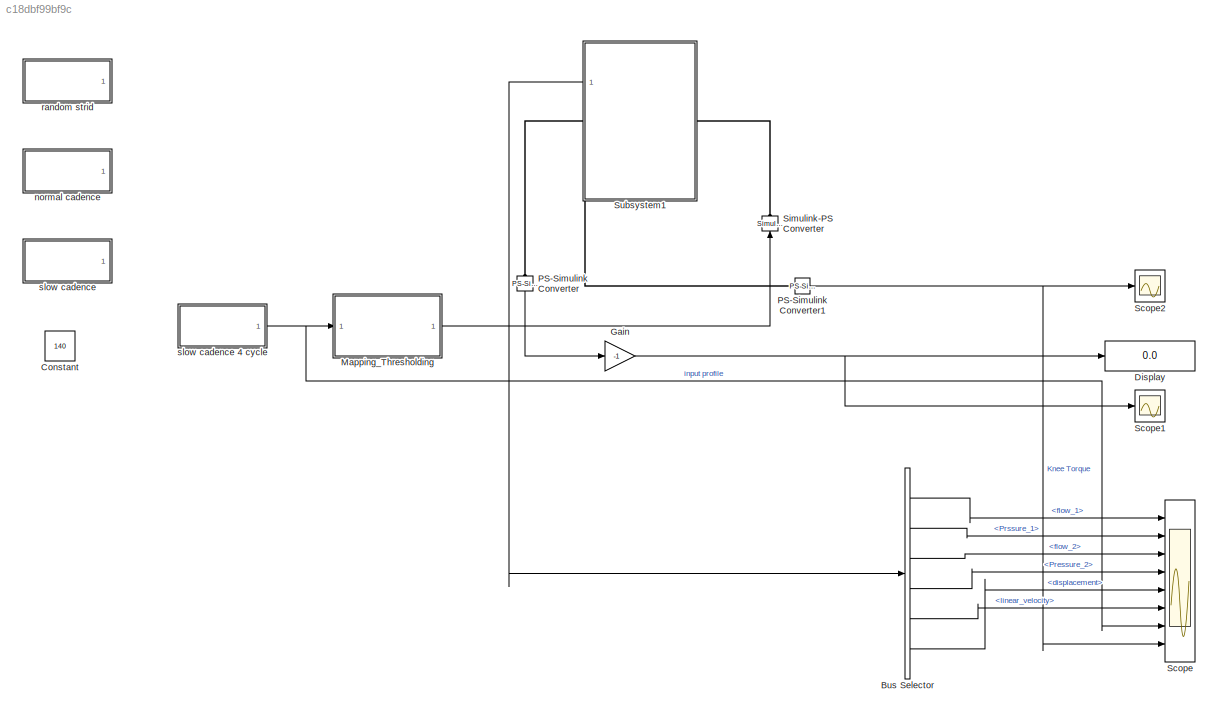
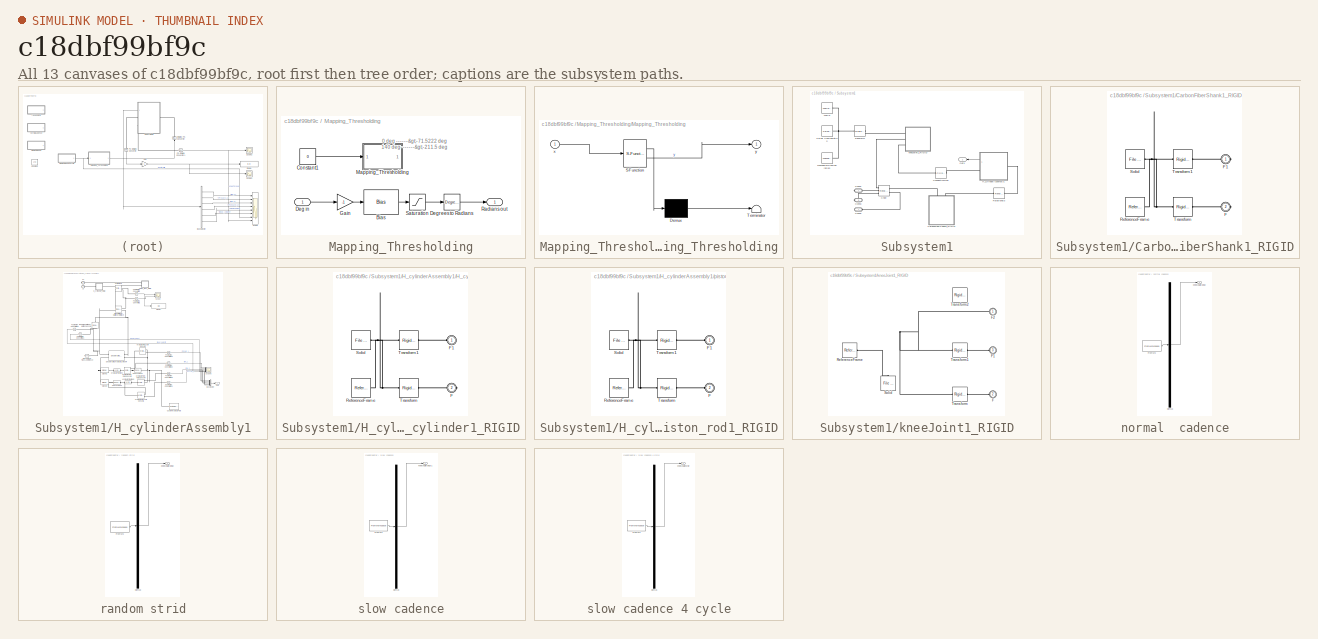
[diagram: thumbnail index - all 13 canvases of the model, root first then tree order]
MODEL slx_c18dbf99bf9c
KIND model
CONFIG AbsTol = auto
CONFIG EnableMultiTasking = off
CONFIG FixedStep = auto
CONFIG MaxStep = auto
CONFIG MinStep = auto
CONFIG RelTol = 1e-3
CONFIG SampleTimeConstraint = Unconstrained
CONFIG SolverName = VariableStepAuto
CONFIG StartTime = 0.0
CONFIG StopTime = 4.872
WORKSPACE source: external: MATLAB File  (data not in archive)
BLOCK [BusSelector] Bus Selector
  OutputSignals = flow_1,Prssure_1,flow_2,Pressure_2,linear_velocity,displacement
  Ports = [1, 6]
BLOCK [Constant] Constant
  Value = 140
BLOCK [Display] Display
  Decimation = 1
  Ports = [1]
BLOCK [Gain] Gain
  Gain = -1
BLOCK [SubSystem] Mapping_Thresholding
  Ports = [1, 1]
  RequestExecContextInheritance = off
BLOCK [Bias] Mapping_Thresholding/Bias
  Bias = -71.5222
  SaturateOnIntegerOverflow = off
BLOCK [Constant] Mapping_Thresholding/Constant1
  Commented = on
  Value = 0
BLOCK [Inport] Mapping_Thresholding/Deg in
BLOCK [Reference] Mapping_Thresholding/Degrees to Radians  REF=simulink_extras/Transformations/Degrees to
Radians
  Ports = [1, 1]
  SourceBlock = simulink_extras/Transformations/Degrees to\nRadians
  SourceProductBaseCode = SL
  SourceType = DegreesToRadians
BLOCK [Gain] Mapping_Thresholding/Gain
  Gain = -1
BLOCK [SubSystem] Mapping_Thresholding/Mapping_Thresholding
  Commented = on
  ErrorFcn = Stateflow.Translate.translate
  PermitHierarchicalResolution = ExplicitOnly
  Ports = [1, 1]
  RequestExecContextInheritance = off
  SFBlockType = MATLAB Function
  TreatAsAtomicUnit = on
BLOCK [Demux] Mapping_Thresholding/Mapping_Thresholding/ Demux 
  Outputs = 1
  Ports = [1, 1]
BLOCK [S-Function] Mapping_Thresholding/Mapping_Thresholding/ SFunction 
  EnableBusSupport = on
  FunctionName = sf_sfun
  PortCounts = [1 2]
  Ports = [1, 2]
  SFcnIsStateOwnerBlock = off
  SFunctionDeploymentMode = off
  Tag = Stateflow S-Function 2
BLOCK [Terminator] Mapping_Thresholding/Mapping_Thresholding/ Terminator 
BLOCK [Inport] Mapping_Thresholding/Mapping_Thresholding/x
BLOCK [Outport] Mapping_Thresholding/Mapping_Thresholding/y
BLOCK [Outport] Mapping_Thresholding/Radians out
BLOCK [Saturate] Mapping_Thresholding/Saturation
  LowerLimit = -211.5
  UpperLimit = -71.5222
BLOCK [Reference] PS-Simulink Converter  REF=nesl_utility/PS-Simulink
Converter
  NameLocation = left
  Ports = [0, 1, 0, 0, 0, 1]
  SourceBlock = nesl_utility/PS-Simulink\nConverter
  SourceProductBaseCode = PW,SS
  SourceType = PS-Simulink\nConverter
BLOCK [Reference] PS-Simulink Converter1  REF=nesl_utility/PS-Simulink
Converter
  Ports = [0, 1, 0, 0, 0, 1]
  SourceBlock = nesl_utility/PS-Simulink\nConverter
  SourceProductBaseCode = PW,SS
  SourceType = PS-Simulink\nConverter
BLOCK [Scope] Scope
  Floating = off
  NumInputPorts = 8
  Ports = [8]
  ScopeSpecificationString = Simulink.scopes.TimeScopeBlockCfg('CurrentConfiguration', extmgr.ConfigurationSet(extmgr.Configuration('Core','General UI',true,'DisplayFullSourceName',true),extmgr.Configuration('Core','Source UI',true),extmgr.Configuration('Sources','WiredSimulink',true),extmgr.Configuration('Visuals','Time Domain',true,'SerializedDisplays',{struct('MinYLimReal','-0.0000004','MaxYLimReal','0.0000032','YLabelReal...<+6449ch>
BLOCK [Scope] Scope1
  Floating = off
  NumInputPorts = 1
  Ports = [1]
  ScopeSpecificationString = Simulink.scopes.TimeScopeBlockCfg('CurrentConfiguration', extmgr.ConfigurationSet(extmgr.Configuration('Core','General UI',true),extmgr.Configuration('Core','Source UI',true),extmgr.Configuration('Sources','WiredSimulink',true,'DataLoggingVariableName','ScopeData1'),extmgr.Configuration('Visuals','Time Domain',true,'SerializedDisplays',{struct('MinYLimReal','61.5222','MaxYLimReal','81.5222','YLabe...<+1392ch>
BLOCK [Scope] Scope2
  Floating = off
  NumInputPorts = 1
  Ports = [1]
  ScopeSpecificationString = Simulink.scopes.TimeScopeBlockCfg('CurrentConfiguration', extmgr.ConfigurationSet(extmgr.Configuration('Core','General UI',true),extmgr.Configuration('Core','Source UI',true),extmgr.Configuration('Sources','WiredSimulink',true,'DataLoggingVariableName','ScopeData1'),extmgr.Configuration('Visuals','Time Domain',true,'SerializedDisplays',{struct('MinYLimReal','-1175570.49889','MaxYLimReal','116537.7...<+1516ch>
BLOCK [Reference] Simulink-PS Converter  REF=nesl_utility/Simulink-PS
Converter
  NameLocation = right
  Ports = [1, 0, 0, 0, 0, 0, 1]
  SourceBlock = nesl_utility/Simulink-PS\nConverter
  SourceProductBaseCode = PW,SS
  SourceType = Simulink-PS\nConverter
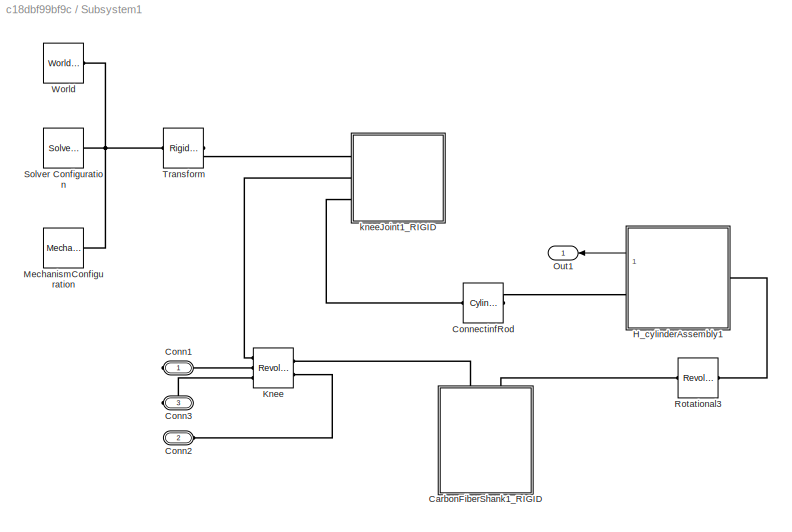
BLOCK [SubSystem] Subsystem1
  NameLocation = top
  Ports = [0, 1, 0, 0, 0, 1, 2]
  RequestExecContextInheritance = off
BLOCK [SubSystem] Subsystem1/CarbonFiberShank1_RIGID
  NameLocation = right
  Ports = [0, 0, 0, 0, 0, 0, 2]
  RequestExecContextInheritance = off
BLOCK [PMIOPort] Subsystem1/CarbonFiberShank1_RIGID/F
  Port = 2
  Side = Right
BLOCK [PMIOPort] Subsystem1/CarbonFiberShank1_RIGID/F1
  Side = Right
BLOCK [Reference] Subsystem1/CarbonFiberShank1_RIGID/ReferenceFrame  REF=sm_lib/Frames and
Transforms/Reference
Frame
  Ports = [0, 0, 0, 0, 0, 0, 1]
  SourceBlock = sm_lib/Frames and\nTransforms/Reference\nFrame
  SourceProductBaseCode = MS
  SourceType = Reference\nFrame
BLOCK [Reference] Subsystem1/CarbonFiberShank1_RIGID/Solid  REF=sm_lib/Body Elements/File Solid
  Ports = [0, 0, 0, 0, 0, 0, 1]
  SourceBlock = sm_lib/Body Elements/File Solid
  SourceProductBaseCode = MS
  SourceType = File Solid
BLOCK [Reference] Subsystem1/CarbonFiberShank1_RIGID/Transform  REF=sm_lib/Frames and
Transforms/Rigid
Transform
  Ports = [0, 0, 0, 0, 0, 1, 1]
  SourceBlock = sm_lib/Frames and\nTransforms/Rigid\nTransform
  SourceProductBaseCode = MS
  SourceType = Rigid\nTransform
BLOCK [Reference] Subsystem1/CarbonFiberShank1_RIGID/Transform1  REF=sm_lib/Frames and
Transforms/Rigid
Transform
  Ports = [0, 0, 0, 0, 0, 1, 1]
  SourceBlock = sm_lib/Frames and\nTransforms/Rigid\nTransform
  SourceProductBaseCode = MS
  SourceType = Rigid\nTransform
BLOCK [PMIOPort] Subsystem1/Conn1
  NameLocation = top
  Side = Right
BLOCK [PMIOPort] Subsystem1/Conn2
  Port = 2
  Side = Left
BLOCK [PMIOPort] Subsystem1/Conn3
  NameLocation = top
  Port = 3
  Side = Right
BLOCK [Reference] Subsystem1/ConnectinfRod  REF=sm_lib/Joints/Cylindrical
Joint
  NameLocation = top
  Ports = [0, 0, 0, 0, 0, 1, 1]
  SourceBlock = sm_lib/Joints/Cylindrical\nJoint
  SourceProductBaseCode = MS
  SourceType = Cylindrical\nJoint
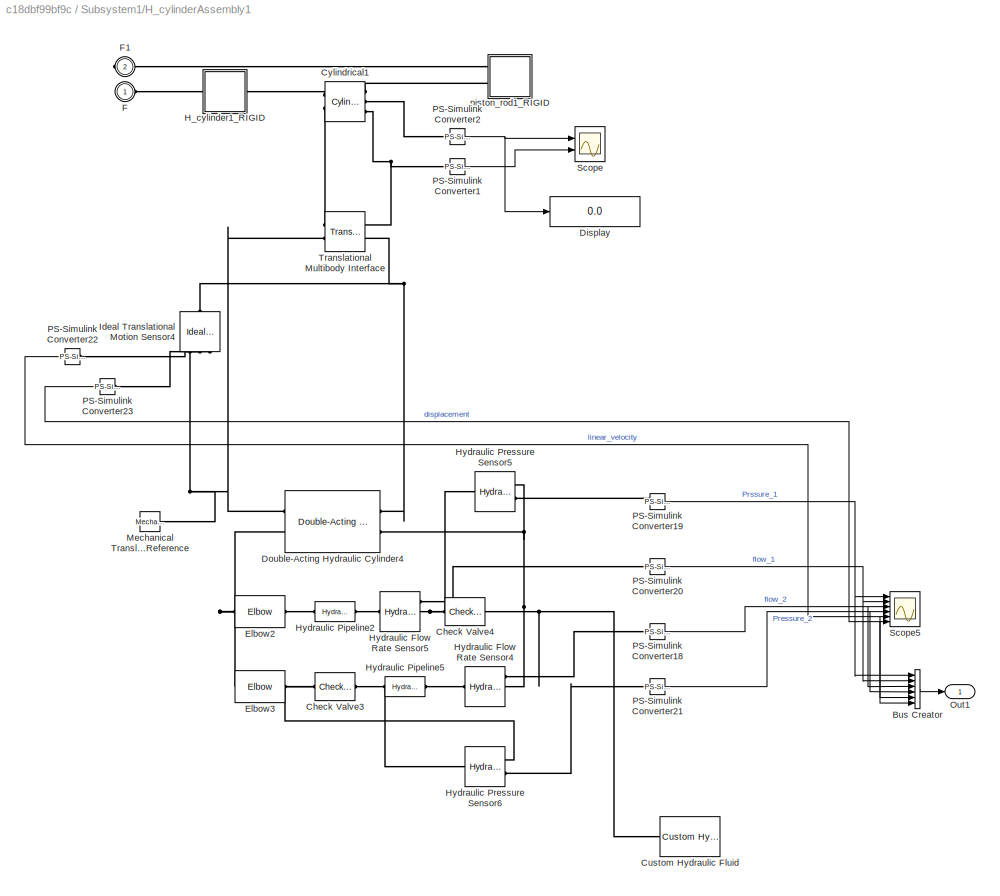
BLOCK [SubSystem] Subsystem1/H_cylinderAssembly1
  NameLocation = top
  Ports = [0, 1, 0, 0, 0, 1, 1]
  RequestExecContextInheritance = off
BLOCK [BusCreator] Subsystem1/H_cylinderAssembly1/Bus Creator
  DisplayOption = bar
  InheritFromInputs = on
  Inputs = 6
  Ports = [6, 1]
BLOCK [Reference] Subsystem1/H_cylinderAssembly1/Check Valve3  REF=sh_lib/Valves/Directional Valves/Check Valve
  NameLocation = top
  Ports = [0, 0, 0, 0, 0, 1, 1]
  SourceBlock = sh_lib/Valves/Directional Valves/Check Valve
  SourceProductBaseCode = SH
  SourceType = Check Valve
BLOCK [Reference] Subsystem1/H_cylinderAssembly1/Check Valve4  REF=sh_lib/Valves/Directional Valves/Check Valve
  Ports = [0, 0, 0, 0, 0, 1, 1]
  SourceBlock = sh_lib/Valves/Directional Valves/Check Valve
  SourceProductBaseCode = SH
  SourceType = Check Valve
BLOCK [Reference] Subsystem1/H_cylinderAssembly1/Custom Hydraulic Fluid  REF=fl_lib/Hydraulic/Hydraulic Utilities/Custom Hydraulic
Fluid
  NameLocation = top
  Ports = [0, 0, 0, 0, 0, 0, 1]
  SourceBlock = fl_lib/Hydraulic/Hydraulic Utilities/Custom Hydraulic\nFluid
  SourceProductBaseCode = SS
  SourceType = Custom Hydraulic\nFluid
BLOCK [Reference] Subsystem1/H_cylinderAssembly1/Cylindrical1  REF=sm_lib/Joints/Cylindrical
Joint
  Ports = [0, 0, 0, 0, 0, 2, 3]
  SourceBlock = sm_lib/Joints/Cylindrical\nJoint
  SourceProductBaseCode = MS
  SourceType = Cylindrical\nJoint
BLOCK [Display] Subsystem1/H_cylinderAssembly1/Display
  Decimation = 1
  Ports = [1]
BLOCK [Reference] Subsystem1/H_cylinderAssembly1/Double-Acting Hydraulic Cylinder4  REF=sh_lib/Hydraulic Cylinders/Double-Acting
Hydraulic Cylinder
  Ports = [0, 0, 0, 0, 0, 2, 2]
  SourceBlock = sh_lib/Hydraulic Cylinders/Double-Acting\nHydraulic Cylinder
  SourceProductBaseCode = SH
  SourceType = Double-Acting\nHydraulic Cylinder
BLOCK [Reference] Subsystem1/H_cylinderAssembly1/Elbow2  REF=sh_lib/Local Hydraulic
Resistances/Elbow
  Ports = [0, 0, 0, 0, 0, 1, 1]
  SourceBlock = sh_lib/Local Hydraulic\nResistances/Elbow
  SourceProductBaseCode = SH
  SourceType = Elbow
BLOCK [Reference] Subsystem1/H_cylinderAssembly1/Elbow3  REF=sh_lib/Local Hydraulic
Resistances/Elbow
  Ports = [0, 0, 0, 0, 0, 1, 1]
  SourceBlock = sh_lib/Local Hydraulic\nResistances/Elbow
  SourceProductBaseCode = SH
  SourceType = Elbow
BLOCK [PMIOPort] Subsystem1/H_cylinderAssembly1/F
  Side = Left
BLOCK [PMIOPort] Subsystem1/H_cylinderAssembly1/F1
  Port = 2
  Side = Right
BLOCK [SubSystem] Subsystem1/H_cylinderAssembly1/H_cylinder1_RIGID
  Ports = [0, 0, 0, 0, 0, 1, 1]
  RequestExecContextInheritance = off
BLOCK [PMIOPort] Subsystem1/H_cylinderAssembly1/H_cylinder1_RIGID/F
  Port = 2
  Side = Right
BLOCK [PMIOPort] Subsystem1/H_cylinderAssembly1/H_cylinder1_RIGID/F1
  Side = Left
BLOCK [Reference] Subsystem1/H_cylinderAssembly1/H_cylinder1_RIGID/ReferenceFrame  REF=sm_lib/Frames and
Transforms/Reference
Frame
  Ports = [0, 0, 0, 0, 0, 0, 1]
  SourceBlock = sm_lib/Frames and\nTransforms/Reference\nFrame
  SourceProductBaseCode = MS
  SourceType = Reference\nFrame
BLOCK [Reference] Subsystem1/H_cylinderAssembly1/H_cylinder1_RIGID/Solid  REF=sm_lib/Body Elements/File Solid
  Ports = [0, 0, 0, 0, 0, 0, 1]
  SourceBlock = sm_lib/Body Elements/File Solid
  SourceProductBaseCode = MS
  SourceType = File Solid
BLOCK [Reference] Subsystem1/H_cylinderAssembly1/H_cylinder1_RIGID/Transform  REF=sm_lib/Frames and
Transforms/Rigid
Transform
  Ports = [0, 0, 0, 0, 0, 1, 1]
  SourceBlock = sm_lib/Frames and\nTransforms/Rigid\nTransform
  SourceProductBaseCode = MS
  SourceType = Rigid\nTransform
BLOCK [Reference] Subsystem1/H_cylinderAssembly1/H_cylinder1_RIGID/Transform1  REF=sm_lib/Frames and
Transforms/Rigid
Transform
  Ports = [0, 0, 0, 0, 0, 1, 1]
  SourceBlock = sm_lib/Frames and\nTransforms/Rigid\nTransform
  SourceProductBaseCode = MS
  SourceType = Rigid\nTransform
BLOCK [Reference] Subsystem1/H_cylinderAssembly1/Hydraulic Flow Rate Sensor4  REF=fl_lib/Hydraulic/Hydraulic Sensors/Hydraulic Flow Rate
Sensor
  Ports = [0, 0, 0, 0, 0, 1, 3]
  SourceBlock = fl_lib/Hydraulic/Hydraulic Sensors/Hydraulic Flow Rate\nSensor
  SourceProductBaseCode = SS
  SourceType = Hydraulic Flow Rate\nSensor
BLOCK [Reference] Subsystem1/H_cylinderAssembly1/Hydraulic Flow Rate Sensor5  REF=fl_lib/Hydraulic/Hydraulic Sensors/Hydraulic Flow Rate
Sensor
  Ports = [0, 0, 0, 0, 0, 1, 3]
  SourceBlock = fl_lib/Hydraulic/Hydraulic Sensors/Hydraulic Flow Rate\nSensor
  SourceProductBaseCode = SS
  SourceType = Hydraulic Flow Rate\nSensor
BLOCK [Reference] Subsystem1/H_cylinderAssembly1/Hydraulic Pipeline2  REF=sh_lib/Pipelines/Hydraulic Pipeline
  Ports = [0, 0, 0, 0, 0, 1, 1]
  SourceBlock = sh_lib/Pipelines/Hydraulic Pipeline
  SourceProductBaseCode = SH
  SourceType = Hydraulic Pipeline
BLOCK [Reference] Subsystem1/H_cylinderAssembly1/Hydraulic Pipeline5  REF=sh_lib/Pipelines/Hydraulic Pipeline
  Ports = [0, 0, 0, 0, 0, 1, 1]
  SourceBlock = sh_lib/Pipelines/Hydraulic Pipeline
  SourceProductBaseCode = SH
  SourceType = Hydraulic Pipeline
BLOCK [Reference] Subsystem1/H_cylinderAssembly1/Hydraulic Pressure Sensor5  REF=fl_lib/Hydraulic/Hydraulic Sensors/Hydraulic Pressure
Sensor
  Ports = [0, 0, 0, 0, 0, 1, 2]
  SourceBlock = fl_lib/Hydraulic/Hydraulic Sensors/Hydraulic Pressure\nSensor
  SourceProductBaseCode = SS
  SourceType = Hydraulic Pressure\nSensor
BLOCK [Reference] Subsystem1/H_cylinderAssembly1/Hydraulic Pressure Sensor6  REF=fl_lib/Hydraulic/Hydraulic Sensors/Hydraulic Pressure
Sensor
  Ports = [0, 0, 0, 0, 0, 1, 2]
  SourceBlock = fl_lib/Hydraulic/Hydraulic Sensors/Hydraulic Pressure\nSensor
  SourceProductBaseCode = SS
  SourceType = Hydraulic Pressure\nSensor
BLOCK [Reference] Subsystem1/H_cylinderAssembly1/Ideal Translational Motion Sensor4  REF=fl_lib/Mechanical/Mechanical Sensors/Ideal Translational
Motion Sensor
  NameLocation = left
  Ports = [0, 0, 0, 0, 0, 1, 3]
  SourceBlock = fl_lib/Mechanical/Mechanical Sensors/Ideal Translational\nMotion Sensor
  SourceProductBaseCode = SS
  SourceType = Ideal Translational\nMotion Sensor
BLOCK [Reference] Subsystem1/H_cylinderAssembly1/Mechanical Translational Reference  REF=fl_lib/Mechanical/Translational
Elements/Mechanical
Translational
Reference
  NameLocation = right
  Ports = [0, 0, 0, 0, 0, 1]
  SourceBlock = fl_lib/Mechanical/Translational\nElements/Mechanical\nTranslational\nReference
  SourceProductBaseCode = SS
  SourceType = Mechanical\nTranslational\nReference
BLOCK [Outport] Subsystem1/H_cylinderAssembly1/Out1
BLOCK [Reference] Subsystem1/H_cylinderAssembly1/PS-Simulink Converter1  REF=nesl_utility/PS-Simulink
Converter
  Ports = [0, 1, 0, 0, 0, 1]
  SourceBlock = nesl_utility/PS-Simulink\nConverter
  SourceProductBaseCode = PW,SS
  SourceType = PS-Simulink\nConverter
BLOCK [Reference] Subsystem1/H_cylinderAssembly1/PS-Simulink Converter18  REF=nesl_utility/PS-Simulink
Converter
  Ports = [0, 1, 0, 0, 0, 1]
  SourceBlock = nesl_utility/PS-Simulink\nConverter
  SourceProductBaseCode = PW,SS
  SourceType = PS-Simulink\nConverter
BLOCK [Reference] Subsystem1/H_cylinderAssembly1/PS-Simulink Converter19  REF=nesl_utility/PS-Simulink
Converter
  Ports = [0, 1, 0, 0, 0, 1]
  SourceBlock = nesl_utility/PS-Simulink\nConverter
  SourceProductBaseCode = PW,SS
  SourceType = PS-Simulink\nConverter
BLOCK [Reference] Subsystem1/H_cylinderAssembly1/PS-Simulink Converter2  REF=nesl_utility/PS-Simulink
Converter
  Ports = [0, 1, 0, 0, 0, 1]
  SourceBlock = nesl_utility/PS-Simulink\nConverter
  SourceProductBaseCode = PW,SS
  SourceType = PS-Simulink\nConverter
BLOCK [Reference] Subsystem1/H_cylinderAssembly1/PS-Simulink Converter20  REF=nesl_utility/PS-Simulink
Converter
  Ports = [0, 1, 0, 0, 0, 1]
  SourceBlock = nesl_utility/PS-Simulink\nConverter
  SourceProductBaseCode = PW,SS
  SourceType = PS-Simulink\nConverter
BLOCK [Reference] Subsystem1/H_cylinderAssembly1/PS-Simulink Converter21  REF=nesl_utility/PS-Simulink
Converter
  Ports = [0, 1, 0, 0, 0, 1]
  SourceBlock = nesl_utility/PS-Simulink\nConverter
  SourceProductBaseCode = PW,SS
  SourceType = PS-Simulink\nConverter
BLOCK [Reference] Subsystem1/H_cylinderAssembly1/PS-Simulink Converter22  REF=nesl_utility/PS-Simulink
Converter
  NameLocation = top
  Ports = [0, 1, 0, 0, 0, 1]
  SourceBlock = nesl_utility/PS-Simulink\nConverter
  SourceProductBaseCode = PW,SS
  SourceType = PS-Simulink\nConverter
BLOCK [Reference] Subsystem1/H_cylinderAssembly1/PS-Simulink Converter23  REF=nesl_utility/PS-Simulink
Converter
  NameLocation = top
  Ports = [0, 1, 0, 0, 0, 1]
  SourceBlock = nesl_utility/PS-Simulink\nConverter
  SourceProductBaseCode = PW,SS
  SourceType = PS-Simulink\nConverter
BLOCK [Scope] Subsystem1/H_cylinderAssembly1/Scope
  Floating = off
  NumInputPorts = 2
  Ports = [2]
  ScopeSpecificationString = Simulink.scopes.TimeScopeBlockCfg('CurrentConfiguration', extmgr.ConfigurationSet(extmgr.Configuration('Core','General UI',true),extmgr.Configuration('Core','Source UI',true),extmgr.Configuration('Sources','WiredSimulink',true,'DataLoggingVariableName','ScopeData1'),extmgr.Configuration('Visuals','Time Domain',true,'SerializedDisplays',{struct('MinYLimReal','-0.05582','MaxYLimReal','0.0062','YLabe...<+1480ch>
BLOCK [Scope] Subsystem1/H_cylinderAssembly1/Scope5
  Commented = on
  Floating = off
  NumInputPorts = 6
  Ports = [6]
  ScopeSpecificationString = Simulink.scopes.TimeScopeBlockCfg('CurrentConfiguration', extmgr.ConfigurationSet(extmgr.Configuration('Core','General UI',true),extmgr.Configuration('Core','Source UI',true),extmgr.Configuration('Sources','WiredSimulink',true,'DataLoggingVariableName','ScopeData7'),extmgr.Configuration('Visuals','Time Domain',true,'SerializedDisplays',{struct('MinYLimReal','-38249.5154','MaxYLimReal','38090.51476...<+5012ch>
BLOCK [Reference] Subsystem1/H_cylinderAssembly1/Translational Multibody Interface  REF=fl_lib/Mechanical/Multibody Interfaces/Translational
Multibody Interface
  Ports = [0, 0, 0, 0, 0, 2, 2]
  SourceBlock = fl_lib/Mechanical/Multibody Interfaces/Translational\nMultibody Interface
  SourceProductBaseCode = SS
  SourceType = Translational\nMultibody Interface
BLOCK [SubSystem] Subsystem1/H_cylinderAssembly1/piston_rod1_RIGID
  Ports = [0, 0, 0, 0, 0, 2]
  RequestExecContextInheritance = off
BLOCK [PMIOPort] Subsystem1/H_cylinderAssembly1/piston_rod1_RIGID/F
  Port = 2
  Side = Left
BLOCK [PMIOPort] Subsystem1/H_cylinderAssembly1/piston_rod1_RIGID/F1
  Side = Left
BLOCK [Reference] Subsystem1/H_cylinderAssembly1/piston_rod1_RIGID/ReferenceFrame  REF=sm_lib/Frames and
Transforms/Reference
Frame
  Ports = [0, 0, 0, 0, 0, 0, 1]
  SourceBlock = sm_lib/Frames and\nTransforms/Reference\nFrame
  SourceProductBaseCode = MS
  SourceType = Reference\nFrame
BLOCK [Reference] Subsystem1/H_cylinderAssembly1/piston_rod1_RIGID/Solid  REF=sm_lib/Body Elements/File Solid
  Ports = [0, 0, 0, 0, 0, 0, 1]
  SourceBlock = sm_lib/Body Elements/File Solid
  SourceProductBaseCode = MS
  SourceType = File Solid
BLOCK [Reference] Subsystem1/H_cylinderAssembly1/piston_rod1_RIGID/Transform  REF=sm_lib/Frames and
Transforms/Rigid
Transform
  Ports = [0, 0, 0, 0, 0, 1, 1]
  SourceBlock = sm_lib/Frames and\nTransforms/Rigid\nTransform
  SourceProductBaseCode = MS
  SourceType = Rigid\nTransform
BLOCK [Reference] Subsystem1/H_cylinderAssembly1/piston_rod1_RIGID/Transform1  REF=sm_lib/Frames and
Transforms/Rigid
Transform
  Ports = [0, 0, 0, 0, 0, 1, 1]
  SourceBlock = sm_lib/Frames and\nTransforms/Rigid\nTransform
  SourceProductBaseCode = MS
  SourceType = Rigid\nTransform
BLOCK [Reference] Subsystem1/Knee  REF=sm_lib/Joints/Revolute Joint
  NameLocation = top
  Ports = [0, 0, 0, 0, 0, 2, 3]
  SourceBlock = sm_lib/Joints/Revolute Joint
  SourceProductBaseCode = MS
  SourceType = Revolute Joint
BLOCK [Reference] Subsystem1/MechanismConfiguration  REF=sm_lib/Utilities/Mechanism
Configuration
  Ports = [0, 0, 0, 0, 0, 0, 1]
  SourceBlock = sm_lib/Utilities/Mechanism\nConfiguration
  SourceProductBaseCode = MS
  SourceType = Mechanism\nConfiguration
BLOCK [Outport] Subsystem1/Out1
  NameLocation = top
BLOCK [Reference] Subsystem1/Rotational3  REF=sm_lib/Joints/Revolute Joint
  Ports = [0, 0, 0, 0, 0, 1, 1]
  SourceBlock = sm_lib/Joints/Revolute Joint
  SourceProductBaseCode = MS
  SourceType = Revolute Joint
BLOCK [Reference] Subsystem1/Solver Configuration  REF=nesl_utility/Solver
Configuration
  Ports = [0, 0, 0, 0, 0, 0, 1]
  SourceBlock = nesl_utility/Solver\nConfiguration
  SourceProductBaseCode = PW,SS
  SourceType = Solver\nConfiguration
BLOCK [Reference] Subsystem1/Transform  REF=sm_lib/Frames and
Transforms/Rigid
Transform
  Ports = [0, 0, 0, 0, 0, 1, 1]
  SourceBlock = sm_lib/Frames and\nTransforms/Rigid\nTransform
  SourceProductBaseCode = MS
  SourceType = Rigid\nTransform
BLOCK [Reference] Subsystem1/World  REF=sm_lib/Frames and
Transforms/World Frame
  Ports = [0, 0, 0, 0, 0, 0, 1]
  SourceBlock = sm_lib/Frames and\nTransforms/World Frame
  SourceProductBaseCode = MS
  SourceType = World Frame
BLOCK [SubSystem] Subsystem1/kneeJoint1_RIGID
  Ports = [0, 0, 0, 0, 0, 3]
  RequestExecContextInheritance = off
BLOCK [PMIOPort] Subsystem1/kneeJoint1_RIGID/F
  Port = 2
  Side = Left
BLOCK [PMIOPort] Subsystem1/kneeJoint1_RIGID/F1
  Port = 3
  Side = Left
BLOCK [PMIOPort] Subsystem1/kneeJoint1_RIGID/F2
  Side = Left
BLOCK [Reference] Subsystem1/kneeJoint1_RIGID/ReferenceFrame  REF=sm_lib/Frames and
Transforms/Reference
Frame
  Ports = [0, 0, 0, 0, 0, 0, 1]
  SourceBlock = sm_lib/Frames and\nTransforms/Reference\nFrame
  SourceProductBaseCode = MS
  SourceType = Reference\nFrame
BLOCK [Reference] Subsystem1/kneeJoint1_RIGID/Solid  REF=sm_lib/Body Elements/File Solid
  NameLocation = right
  Ports = [0, 0, 0, 0, 0, 0, 1]
  SourceBlock = sm_lib/Body Elements/File Solid
  SourceProductBaseCode = MS
  SourceType = File Solid
BLOCK [Reference] Subsystem1/kneeJoint1_RIGID/Transform  REF=sm_lib/Frames and
Transforms/Rigid
Transform
  Ports = [0, 0, 0, 0, 0, 1, 1]
  SourceBlock = sm_lib/Frames and\nTransforms/Rigid\nTransform
  SourceProductBaseCode = MS
  SourceType = Rigid\nTransform
BLOCK [Reference] Subsystem1/kneeJoint1_RIGID/Transform1  REF=sm_lib/Frames and
Transforms/Rigid
Transform
  Ports = [0, 0, 0, 0, 0, 1, 1]
  SourceBlock = sm_lib/Frames and\nTransforms/Rigid\nTransform
  SourceProductBaseCode = MS
  SourceType = Rigid\nTransform
BLOCK [Reference] Subsystem1/kneeJoint1_RIGID/Transform2  REF=sm_lib/Frames and
Transforms/Rigid
Transform
  Commented = on
  Ports = [0, 0, 0, 0, 0, 1, 1]
  SourceBlock = sm_lib/Frames and\nTransforms/Rigid\nTransform
  SourceProductBaseCode = MS
  SourceType = Rigid\nTransform
BLOCK [SubSystem] normal  cadence
  ClipboardFcn = sigbuilder_block('clipboard');
  CloseFcn = sigbuilder_block('close');
  ContinueFcn = sigbuilder_block('continue');
  CopyFcn = sigbuilder_block('copy');
  DeleteFcn = sigbuilder_block('delete');
  LoadFcn = sigbuilder_block('load');
  MaskHideContents = on
  ModelCloseFcn = sigbuilder_block('modelClose');
  NameChangeFcn = sigbuilder_block('namechange');
  OpenFcn = sigbuilder_block('open',[363.6 138 550.8 400.2 ]);
  PauseFcn = sigbuilder_block('pause');
  Ports = [0, 1]
  PreSaveFcn = sigbuilder_block('preSave');
  RequestExecContextInheritance = off
  StartFcn = sigbuilder_block('start');
  StopFcn = sigbuilder_block('stop');
  Tag = STV Subsys
BLOCK [Demux] normal  cadence/Demux
  DisplayOption = none
  Outputs = 1
  Ports = [1, 1]
  Tag = STV Demux
BLOCK [FromWorkspace] normal  cadence/FromWs
  Tag = STV FromWs
  VariableName = tuvar
BLOCK [Outport] normal  cadence/KneeAngle(deg)
  Tag = STV Outport
BLOCK [SubSystem] random strid
  ClipboardFcn = sigbuilder_block('clipboard');
  CloseFcn = sigbuilder_block('close');
  ContinueFcn = sigbuilder_block('continue');
  CopyFcn = sigbuilder_block('copy');
  DeleteFcn = sigbuilder_block('delete');
  LoadFcn = sigbuilder_block('load');
  MaskHideContents = on
  ModelCloseFcn = sigbuilder_block('modelClose');
  NameChangeFcn = sigbuilder_block('namechange');
  OpenFcn = sigbuilder_block('open',[363.6 138 550.8 400.2 ]);
  PauseFcn = sigbuilder_block('pause');
  Ports = [0, 1]
  PreSaveFcn = sigbuilder_block('preSave');
  RequestExecContextInheritance = off
  StartFcn = sigbuilder_block('start');
  StopFcn = sigbuilder_block('stop');
  Tag = STV Subsys
BLOCK [Demux] random strid/Demux
  DisplayOption = none
  Outputs = 1
  Ports = [1, 1]
  Tag = STV Demux
BLOCK [FromWorkspace] random strid/FromWs
  Tag = STV FromWs
  VariableName = tuvar
BLOCK [Outport] random strid/KneeAngle(deg)
  Tag = STV Outport
BLOCK [SubSystem] slow cadence
  ClipboardFcn = sigbuilder_block('clipboard');
  CloseFcn = sigbuilder_block('close');
  ContinueFcn = sigbuilder_block('continue');
  CopyFcn = sigbuilder_block('copy');
  DeleteFcn = sigbuilder_block('delete');
  LoadFcn = sigbuilder_block('load');
  MaskHideContents = on
  ModelCloseFcn = sigbuilder_block('modelClose');
  NameChangeFcn = sigbuilder_block('namechange');
  OpenFcn = sigbuilder_block('open',[5.4 30 1141.2 522.6 ]);
  PauseFcn = sigbuilder_block('pause');
  Ports = [0, 1]
  PreSaveFcn = sigbuilder_block('preSave');
  RequestExecContextInheritance = off
  StartFcn = sigbuilder_block('start');
  StopFcn = sigbuilder_block('stop');
  Tag = STV Subsys
BLOCK [SubSystem] slow cadence 4 cycle
  ClipboardFcn = sigbuilder_block('clipboard');
  CloseFcn = sigbuilder_block('close');
  ContinueFcn = sigbuilder_block('continue');
  CopyFcn = sigbuilder_block('copy');
  DeleteFcn = sigbuilder_block('delete');
  LoadFcn = sigbuilder_block('load');
  MaskHideContents = on
  ModelCloseFcn = sigbuilder_block('modelClose');
  NameChangeFcn = sigbuilder_block('namechange');
  OpenFcn = sigbuilder_block('open',[5.4 30 1141.2 522.6 ]);
  PauseFcn = sigbuilder_block('pause');
  Ports = [0, 1]
  PreSaveFcn = sigbuilder_block('preSave');
  RequestExecContextInheritance = off
  StartFcn = sigbuilder_block('start');
  StopFcn = sigbuilder_block('stop');
  Tag = STV Subsys
BLOCK [Demux] slow cadence 4 cycle/Demux
  DisplayOption = none
  Outputs = 1
  Ports = [1, 1]
  Tag = STV Demux
BLOCK [FromWorkspace] slow cadence 4 cycle/FromWs
  Tag = STV FromWs
  VariableName = tuvar
BLOCK [Outport] slow cadence 4 cycle/KneeAngleCycle
  Tag = STV Outport
BLOCK [Demux] slow cadence/Demux
  DisplayOption = none
  Outputs = 1
  Ports = [1, 1]
  Tag = STV Demux
BLOCK [FromWorkspace] slow cadence/FromWs
  Tag = STV FromWs
  VariableName = tuvar
BLOCK [Outport] slow cadence/KneeAngle(deg)1
  Tag = STV Outport
ANNOTATION Mapping_Thresholding: 0 deg ------>-71.5222 deg 140 deg------->-211.5 deg
LINE Bus Selector:1 -> Scope:1
LINE Bus Selector:2 -> Scope:2
LINE Bus Selector:3 -> Scope:3
LINE Bus Selector:4 -> Scope:4
LINE Bus Selector:5 -> Scope:6
LINE Bus Selector:6 -> Scope:5
NET Gain:1 -> Display:1, Scope1:1
LINE Mapping_Thresholding/Bias:1 -> Mapping_Thresholding/Saturation:1
LINE Mapping_Thresholding/Constant1:1 -> Mapping_Thresholding/Mapping_Thresholding:1
LINE Mapping_Thresholding/Deg in:1 -> Mapping_Thresholding/Gain:1
LINE Mapping_Thresholding/Degrees to Radians:1 -> Mapping_Thresholding/Radians out:1
LINE Mapping_Thresholding/Gain:1 -> Mapping_Thresholding/Bias:1
LINE Mapping_Thresholding/Saturation:1 -> Mapping_Thresholding/Degrees to Radians:1
LINE Mapping_Thresholding:1 -> Simulink-PS Converter:1
NET PS-Simulink Converter1:1 -> Scope2:1, Scope:8
LINE PS-Simulink Converter:1 -> Gain:1
LINE Subsystem1/H_cylinderAssembly1/Bus Creator:1 -> Subsystem1/H_cylinderAssembly1/Out1:1
NET Subsystem1/H_cylinderAssembly1/PS-Simulink Converter18:1 -> Subsystem1/H_cylinderAssembly1/Bus Creator:3, Subsystem1/H_cylinderAssembly1/Scope5:3
NET Subsystem1/H_cylinderAssembly1/PS-Simulink Converter19:1 -> Subsystem1/H_cylinderAssembly1/Bus Creator:1, Subsystem1/H_cylinderAssembly1/Scope5:1
LINE Subsystem1/H_cylinderAssembly1/PS-Simulink Converter1:1 -> Subsystem1/H_cylinderAssembly1/Scope:2
NET Subsystem1/H_cylinderAssembly1/PS-Simulink Converter20:1 -> Subsystem1/H_cylinderAssembly1/Bus Creator:2, Subsystem1/H_cylinderAssembly1/Scope5:2
NET Subsystem1/H_cylinderAssembly1/PS-Simulink Converter21:1 -> Subsystem1/H_cylinderAssembly1/Bus Creator:4, Subsystem1/H_cylinderAssembly1/Scope5:4
NET Subsystem1/H_cylinderAssembly1/PS-Simulink Converter22:1 -> Subsystem1/H_cylinderAssembly1/Bus Creator:5, Subsystem1/H_cylinderAssembly1/Scope5:5
NET Subsystem1/H_cylinderAssembly1/PS-Simulink Converter23:1 -> Subsystem1/H_cylinderAssembly1/Bus Creator:6, Subsystem1/H_cylinderAssembly1/Scope5:6
NET Subsystem1/H_cylinderAssembly1/PS-Simulink Converter2:1 -> Subsystem1/H_cylinderAssembly1/Display:1, Subsystem1/H_cylinderAssembly1/Scope:1
LINE Subsystem1/H_cylinderAssembly1:1 -> Subsystem1/Out1:1
LINE Subsystem1:1 -> Bus Selector:1
NET slow cadence 4 cycle:1 -> Mapping_Thresholding:1, Scope:7
PLINE PS-Simulink Converter1:LConn1 -- Subsystem1:RConn2
PLINE PS-Simulink Converter:LConn1 -- Subsystem1:RConn1
PLINE Simulink-PS Converter:RConn1 -- Subsystem1:LConn1
PLINE Subsystem1/CarbonFiberShank1_RIGID/F1:RConn1 -- Subsystem1/CarbonFiberShank1_RIGID/Transform1:RConn1
PLINE Subsystem1/CarbonFiberShank1_RIGID/F:RConn1 -- Subsystem1/CarbonFiberShank1_RIGID/Transform:RConn1
PNET net1: Subsystem1/CarbonFiberShank1_RIGID/ReferenceFrame:RConn1 -- Subsystem1/CarbonFiberShank1_RIGID/Solid:RConn1 -- Subsystem1/CarbonFiberShank1_RIGID/Transform1:LConn1 -- Subsystem1/CarbonFiberShank1_RIGID/Transform:LConn1
PLINE Subsystem1/CarbonFiberShank1_RIGID:RConn1 -- Subsystem1/Knee:LConn1
PLINE Subsystem1/CarbonFiberShank1_RIGID:RConn2 -- Subsystem1/Rotational3:LConn1
PLINE Subsystem1/Conn1:RConn1 -- Subsystem1/Knee:RConn2
PLINE Subsystem1/Conn2:RConn1 -- Subsystem1/Knee:LConn2
PLINE Subsystem1/Conn3:RConn1 -- Subsystem1/Knee:RConn3
PLINE Subsystem1/ConnectinfRod:LConn1 -- Subsystem1/H_cylinderAssembly1:RConn1
PLINE Subsystem1/ConnectinfRod:RConn1 -- Subsystem1/kneeJoint1_RIGID:LConn3
PNET net2: Subsystem1/H_cylinderAssembly1/Check Valve3:LConn1 -- Subsystem1/H_cylinderAssembly1/Hydraulic Pipeline5:LConn1 -- Subsystem1/H_cylinderAssembly1/Hydraulic Pressure Sensor6:LConn1
PNET net3: Subsystem1/H_cylinderAssembly1/Check Valve3:RConn1 -- Subsystem1/H_cylinderAssembly1/Elbow3:RConn1 -- Subsystem1/H_cylinderAssembly1/Hydraulic Pressure Sensor6:RConn1
PNET net4: Subsystem1/H_cylinderAssembly1/Check Valve4:LConn1 -- Subsystem1/H_cylinderAssembly1/Hydraulic Flow Rate Sensor5:RConn2 -- Subsystem1/H_cylinderAssembly1/Hydraulic Pressure Sensor5:LConn1
PNET net5: Subsystem1/H_cylinderAssembly1/Check Valve4:RConn1 -- Subsystem1/H_cylinderAssembly1/Custom Hydraulic Fluid:RConn1 -- Subsystem1/H_cylinderAssembly1/Double-Acting Hydraulic Cylinder4:RConn2 -- Subsystem1/H_cylinderAssembly1/Hydraulic Flow Rate Sensor4:RConn2 -- Subsystem1/H_cylinderAssembly1/Hydraulic Pressure Sensor5:RConn1
PLINE Subsystem1/H_cylinderAssembly1/Cylindrical1:LConn1 -- Subsystem1/H_cylinderAssembly1/H_cylinder1_RIGID:RConn1
PLINE Subsystem1/H_cylinderAssembly1/Cylindrical1:LConn2 -- Subsystem1/H_cylinderAssembly1/Translational Multibody Interface:LConn1
PLINE Subsystem1/H_cylinderAssembly1/Cylindrical1:RConn1 -- Subsystem1/H_cylinderAssembly1/piston_rod1_RIGID:LConn2
PLINE Subsystem1/H_cylinderAssembly1/Cylindrical1:RConn2 -- Subsystem1/H_cylinderAssembly1/PS-Simulink Converter2:LConn1
PNET net6: Subsystem1/H_cylinderAssembly1/Cylindrical1:RConn3 -- Subsystem1/H_cylinderAssembly1/PS-Simulink Converter1:LConn1 -- Subsystem1/H_cylinderAssembly1/Translational Multibody Interface:RConn1
PNET net7: Subsystem1/H_cylinderAssembly1/Double-Acting Hydraulic Cylinder4:LConn1 -- Subsystem1/H_cylinderAssembly1/Ideal Translational Motion Sensor4:RConn1 -- Subsystem1/H_cylinderAssembly1/Mechanical Translational Reference:LConn1 -- Subsystem1/H_cylinderAssembly1/Translational Multibody Interface:LConn2
PNET net8: Subsystem1/H_cylinderAssembly1/Double-Acting Hydraulic Cylinder4:LConn2 -- Subsystem1/H_cylinderAssembly1/Elbow2:LConn1 -- Subsystem1/H_cylinderAssembly1/Elbow3:LConn1
PNET net9: Subsystem1/H_cylinderAssembly1/Double-Acting Hydraulic Cylinder4:RConn1 -- Subsystem1/H_cylinderAssembly1/Ideal Translational Motion Sensor4:LConn1 -- Subsystem1/H_cylinderAssembly1/Translational Multibody Interface:RConn2
PLINE Subsystem1/H_cylinderAssembly1/Elbow2:RConn1 -- Subsystem1/H_cylinderAssembly1/Hydraulic Pipeline2:LConn1
PLINE Subsystem1/H_cylinderAssembly1/F1:RConn1 -- Subsystem1/H_cylinderAssembly1/piston_rod1_RIGID:LConn1
PLINE Subsystem1/H_cylinderAssembly1/F:RConn1 -- Subsystem1/H_cylinderAssembly1/H_cylinder1_RIGID:LConn1
PLINE Subsystem1/H_cylinderAssembly1/H_cylinder1_RIGID/F1:RConn1 -- Subsystem1/H_cylinderAssembly1/H_cylinder1_RIGID/Transform1:RConn1
PLINE Subsystem1/H_cylinderAssembly1/H_cylinder1_RIGID/F:RConn1 -- Subsystem1/H_cylinderAssembly1/H_cylinder1_RIGID/Transform:RConn1
PNET net10: Subsystem1/H_cylinderAssembly1/H_cylinder1_RIGID/ReferenceFrame:RConn1 -- Subsystem1/H_cylinderAssembly1/H_cylinder1_RIGID/Solid:RConn1 -- Subsystem1/H_cylinderAssembly1/H_cylinder1_RIGID/Transform1:LConn1 -- Subsystem1/H_cylinderAssembly1/H_cylinder1_RIGID/Transform:LConn1
PLINE Subsystem1/H_cylinderAssembly1/Hydraulic Flow Rate Sensor4:LConn1 -- Subsystem1/H_cylinderAssembly1/Hydraulic Pipeline5:RConn1
PLINE Subsystem1/H_cylinderAssembly1/Hydraulic Flow Rate Sensor4:RConn1 -- Subsystem1/H_cylinderAssembly1/PS-Simulink Converter18:LConn1
PLINE Subsystem1/H_cylinderAssembly1/Hydraulic Flow Rate Sensor5:LConn1 -- Subsystem1/H_cylinderAssembly1/Hydraulic Pipeline2:RConn1
PLINE Subsystem1/H_cylinderAssembly1/Hydraulic Flow Rate Sensor5:RConn1 -- Subsystem1/H_cylinderAssembly1/PS-Simulink Converter20:LConn1
PLINE Subsystem1/H_cylinderAssembly1/Hydraulic Pressure Sensor5:RConn2 -- Subsystem1/H_cylinderAssembly1/PS-Simulink Converter19:LConn1
PLINE Subsystem1/H_cylinderAssembly1/Hydraulic Pressure Sensor6:RConn2 -- Subsystem1/H_cylinderAssembly1/PS-Simulink Converter21:LConn1
PLINE Subsystem1/H_cylinderAssembly1/Ideal Translational Motion Sensor4:RConn2 -- Subsystem1/H_cylinderAssembly1/PS-Simulink Converter22:LConn1
PLINE Subsystem1/H_cylinderAssembly1/Ideal Translational Motion Sensor4:RConn3 -- Subsystem1/H_cylinderAssembly1/PS-Simulink Converter23:LConn1
PLINE Subsystem1/H_cylinderAssembly1/piston_rod1_RIGID/F1:RConn1 -- Subsystem1/H_cylinderAssembly1/piston_rod1_RIGID/Transform1:RConn1
PLINE Subsystem1/H_cylinderAssembly1/piston_rod1_RIGID/F:RConn1 -- Subsystem1/H_cylinderAssembly1/piston_rod1_RIGID/Transform:RConn1
PNET net11: Subsystem1/H_cylinderAssembly1/piston_rod1_RIGID/ReferenceFrame:RConn1 -- Subsystem1/H_cylinderAssembly1/piston_rod1_RIGID/Solid:RConn1 -- Subsystem1/H_cylinderAssembly1/piston_rod1_RIGID/Transform1:LConn1 -- Subsystem1/H_cylinderAssembly1/piston_rod1_RIGID/Transform:LConn1
PLINE Subsystem1/H_cylinderAssembly1:LConn1 -- Subsystem1/Rotational3:RConn1
PLINE Subsystem1/Knee:RConn1 -- Subsystem1/kneeJoint1_RIGID:LConn2
PNET net12: Subsystem1/MechanismConfiguration:RConn1 -- Subsystem1/Solver Configuration:RConn1 -- Subsystem1/Transform:LConn1 -- Subsystem1/World:RConn1
PLINE Subsystem1/Transform:RConn1 -- Subsystem1/kneeJoint1_RIGID:LConn1
PLINE Subsystem1/kneeJoint1_RIGID/F1:RConn1 -- Subsystem1/kneeJoint1_RIGID/Transform1:RConn1
PNET net13: Subsystem1/kneeJoint1_RIGID/F2:RConn1 -- Subsystem1/kneeJoint1_RIGID/ReferenceFrame:RConn1 -- Subsystem1/kneeJoint1_RIGID/Solid:RConn1 -- Subsystem1/kneeJoint1_RIGID/Transform1:LConn1 -- Subsystem1/kneeJoint1_RIGID/Transform:LConn1
PLINE Subsystem1/kneeJoint1_RIGID/F:RConn1 -- Subsystem1/kneeJoint1_RIGID/Transform:RConn1
note: NET lines group one-source signal fan-out (src -> all destinations, sorted); 1:1 wires keep LINE; PNET lines group multi-terminal physical nets as a canonical sorted terminal list (undirected conserving connections); 2-terminal nets keep the pairwise PLINE form
CHART Mapping_Thresholding/Mapping_Thresholding states=1 transitions=1
  STATE_LABEL 'eML_blk_kernel()'
  STATE_LABEL 'SCRIPT:\nfunction y = fcn(x)\ny_min=-71.5222;\ny_max=-211.5;\nx_min=0;\nx_max=140;\nz = (x-x_min)*(y_max-y_min)/(x_max-x_min) + y_min;\nif(z>=-71.5222)\n    y=-71.5222;\nelseif(z<=-211.5)\n    y=-211.5;\nelse y=z;\nend\n\n'
CHART  states=0 transitions=0
